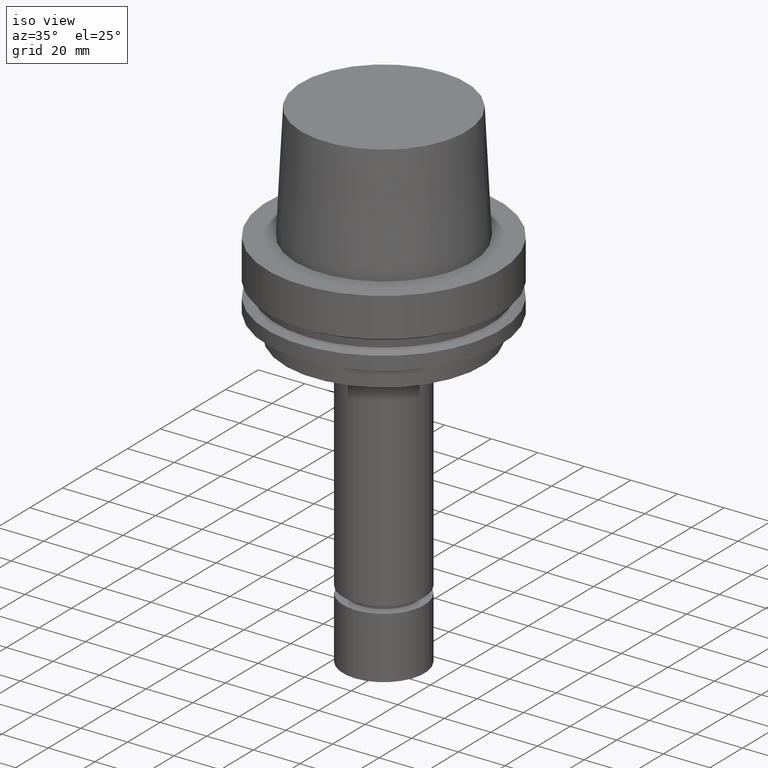
[diagram: clean part render]
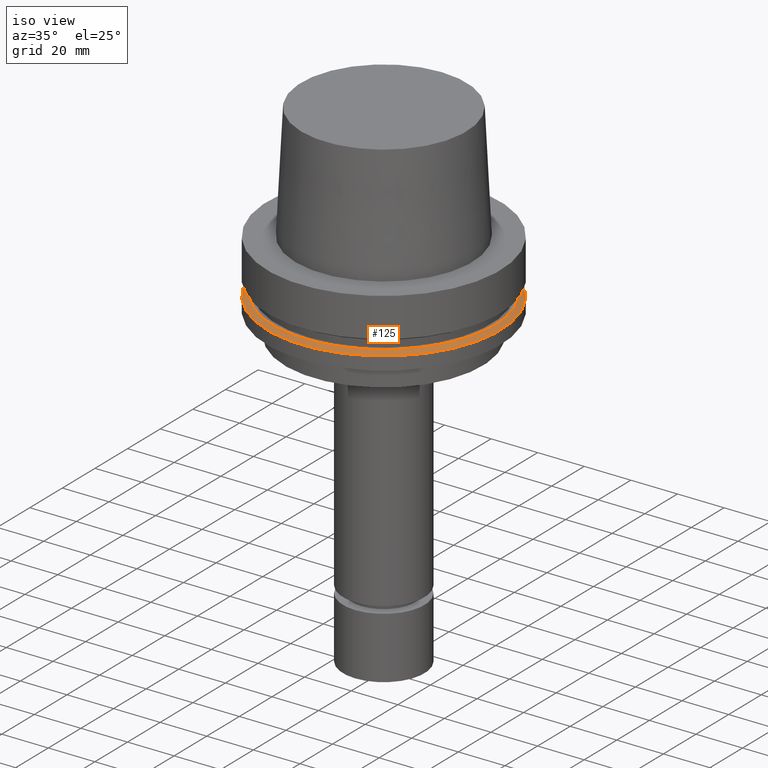
[diagram: same view with one face highlighted and labeled with its STEP entity id]
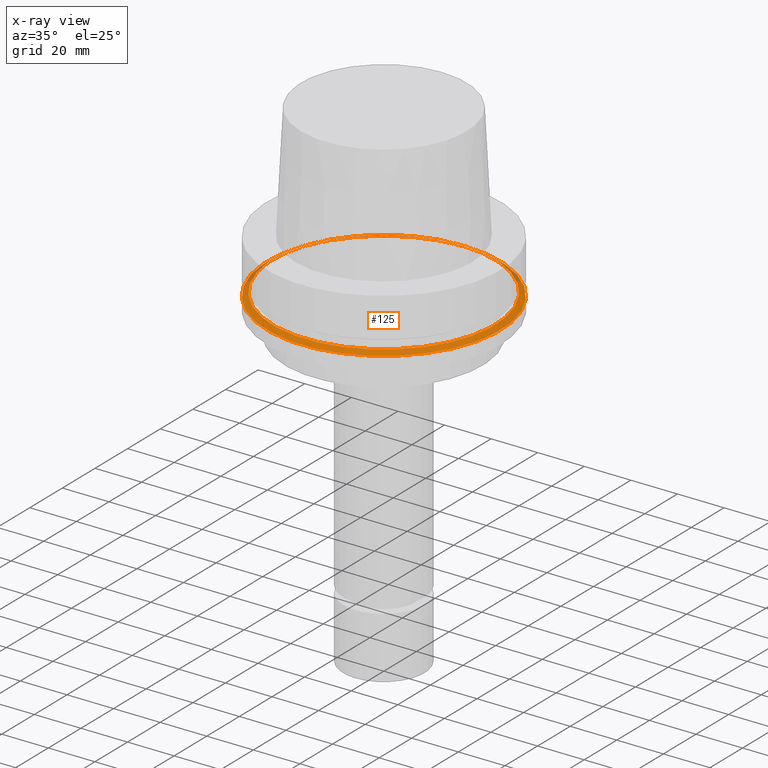
[diagram: x-ray of the same camera — body ghosted, the highlighted face saturated]
A machine part, iso view. The second image highlights one B-rep face of the part: STEP entity #125.
The next image is the same camera in x-ray: the body ghosted, the highlighted face saturated — about 10% of this face is hidden behind the body in this view.
In plain terms, the highlighted conical surface has half-angle 60 deg.
Its self-contained STEP definition (entity closure, byte-faithful):
#108=EDGE_CURVE('Unnamed[1]',#264,#264,#265,.T.);
#125=ADVANCED_FACE('Unnamed[1]',(#288,#289),#290,.T.);
#196=EDGE_CURVE('Unnamed[1]',#399,#399,#400,.T.);
#264=VERTEX_POINT('',#473);
#265=CIRCLE('',#474,50.0);
#288=FACE_BOUND('',#503,.T.);
#289=FACE_BOUND('',#504,.T.);
#290=CONICAL_SURFACE('',#505,48.81129763,1.04719755328238);
#399=VERTEX_POINT('',#642);
#400=CIRCLE('',#643,47.62259526);
#473=CARTESIAN_POINT('',(1.42350465615161E-015,50.0,-23.24759526));
#474=AXIS2_PLACEMENT_3D('',#701,#702,#703);
#503=EDGE_LOOP('',(#724));
#504=EDGE_LOOP('',(#725));
#505=AXIS2_PLACEMENT_3D('',#726,#727,#728);
#642=CARTESIAN_POINT('',(1.33945743656742E-015,47.62259526,-21.875));
#643=AXIS2_PLACEMENT_3D('',#851,#852,#853);
#701=CARTESIAN_POINT('',(1.42350465615161E-015,2.84700931230322E-015,-23.24759526));
#702=DIRECTION('',(6.12323399573677E-017,1.22464679914735E-016,-1.0));
#703=DIRECTION('',(-1.23259516440783E-032,1.0,1.22464679914735E-016));
#724=ORIENTED_EDGE('',*,*,#108,.F.);
#725=ORIENTED_EDGE('',*,*,#196,.T.);
#726=CARTESIAN_POINT('',(1.38148104635951E-015,2.76296209271903E-015,-22.56129763));
#727=DIRECTION('',(6.12323399573677E-017,1.22464679914735E-016,-1.0));
#728=DIRECTION('',(-1.23259516440783E-032,1.0,1.22464679914735E-016));
#851=CARTESIAN_POINT('',(1.33945743656742E-015,2.67891487313483E-015,-21.875));
#852=DIRECTION('',(6.12323399573676E-017,1.22464679914735E-016,-1.0));
#853=DIRECTION('',(-1.23259516440783E-032,1.0,1.22464679914735E-016));